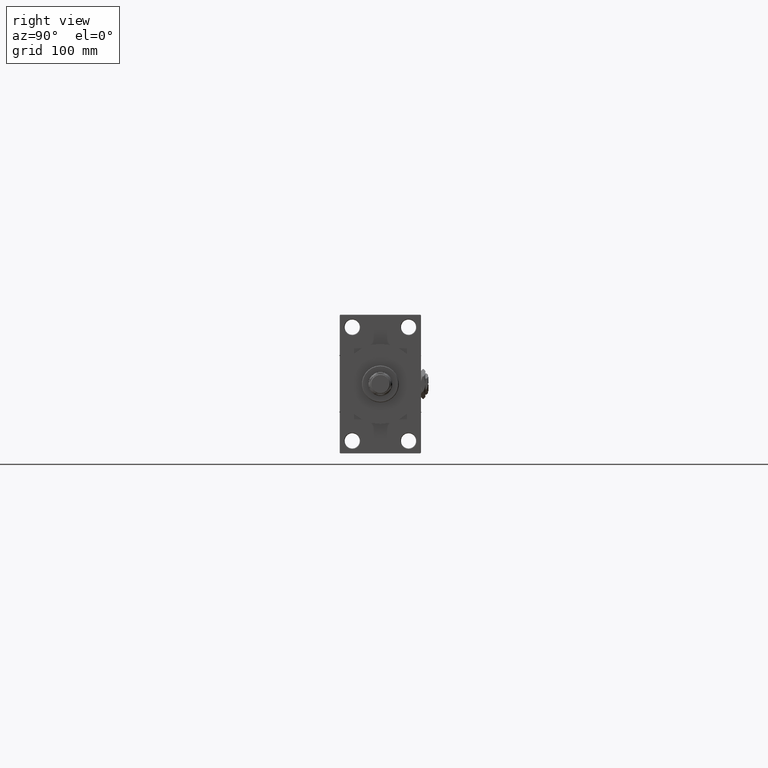
[diagram: clean part render]
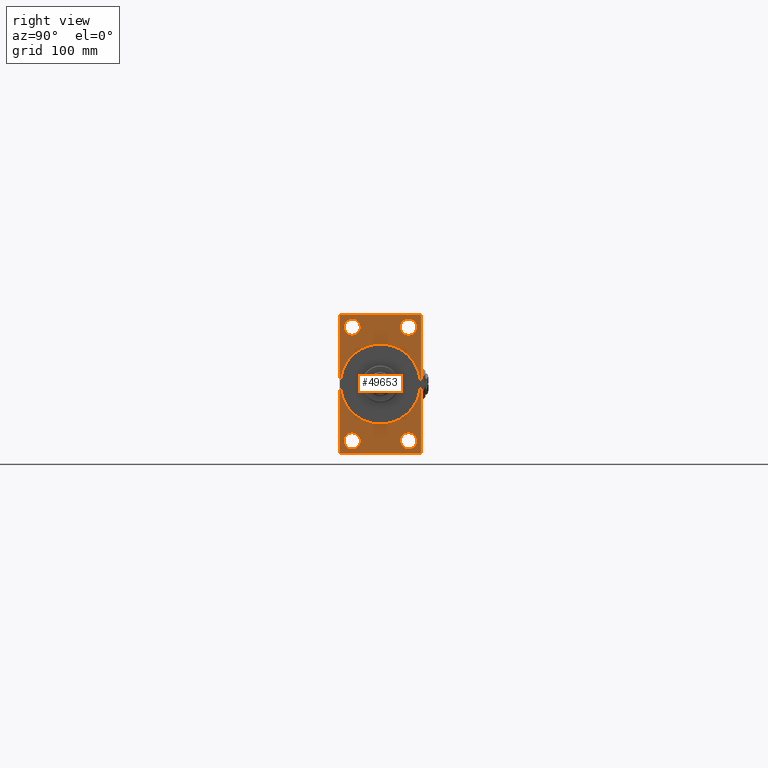
[diagram: same view with one face highlighted and labeled with its STEP entity id]
A machine part, right view. The second image highlights one B-rep face of the part: STEP entity #49653.
In plain terms, the highlighted planar face has unit normal (-1, 0, 0).
Its self-contained STEP definition (entity closure, byte-faithful):
#389 = LINE ( 'NONE', #12494, #36350 ) ;
#462 = AXIS2_PLACEMENT_3D ( 'NONE', #49452, #26256, #21903 ) ;
#643 = ORIENTED_EDGE ( 'NONE', *, *, #12085, .T. ) ;
#1282 = AXIS2_PLACEMENT_3D ( 'NONE', #48208, #48966, #21166 ) ;
#1859 = CARTESIAN_POINT ( 'NONE',  ( 568.0000000000001137, 26.00000000000000000, 44.99999999999998579 ) ) ;
#2209 = EDGE_CURVE ( 'NONE', #21845, #42909, #32504, .T. ) ;
#2258 = AXIS2_PLACEMENT_3D ( 'NONE', #23563, #19697, #27151 ) ;
#2338 = PLANE ( 'NONE',  #29239 ) ;
#2577 = FACE_BOUND ( 'NONE', #36704, .T. ) ;
#3233 = ORIENTED_EDGE ( 'NONE', *, *, #9011, .F. ) ;
#3449 = VERTEX_POINT ( 'NONE', #36911 ) ;
#3459 = CARTESIAN_POINT ( 'NONE',  ( 568.0000000000001137, -37.49999999999999289, 63.49999999999997158 ) ) ;
#3493 = DIRECTION ( 'NONE',  ( 0.000000000000000000, -1.000000000000000000, -1.850371707708594563E-16 ) ) ;
#3709 = CARTESIAN_POINT ( 'NONE',  ( 568.0000000000001137, -25.99999999999999645, -52.49999999999999289 ) ) ;
#3711 = CIRCLE ( 'NONE', #32464, 7.500000000000007105 ) ;
#3890 = EDGE_LOOP ( 'NONE', ( #29221, #23827 ) ) ;
#4214 = EDGE_CURVE ( 'NONE', #35051, #24487, #24438, .T. ) ;
#4538 = CIRCLE ( 'NONE', #11109, 7.500000000000007105 ) ;
#5804 = ORIENTED_EDGE ( 'NONE', *, *, #27560, .T. ) ;
#6195 = FACE_BOUND ( 'NONE', #43731, .T. ) ;
#6498 = CARTESIAN_POINT ( 'NONE',  ( 568.0000000000001137, 26.00000000000000000, -60.00000000000000000 ) ) ;
#6525 = DIRECTION ( 'NONE',  ( -0.000000000000000000, 0.7071067811865965336, 0.7071067811864985009 ) ) ;
#7617 = EDGE_CURVE ( 'NONE', #21946, #23939, #9576, .T. ) ;
#7666 = CARTESIAN_POINT ( 'NONE',  ( 568.0000000000001137, 4.531193156845206793E-15, -37.00000000000000000 ) ) ;
#8192 = LINE ( 'NONE', #27744, #23458 ) ;
#8268 = EDGE_CURVE ( 'NONE', #23939, #21946, #41583, .T. ) ;
#8319 = DIRECTION ( 'NONE',  ( 0.000000000000000000, 0.000000000000000000, 1.000000000000000000 ) ) ;
#8552 = EDGE_CURVE ( 'NONE', #11418, #29539, #21031, .T. ) ;
#8984 = VERTEX_POINT ( 'NONE', #7666 ) ;
#9011 = EDGE_CURVE ( 'NONE', #8984, #28791, #49827, .T. ) ;
#9106 = CARTESIAN_POINT ( 'NONE',  ( 568.0000000000001137, -25.99999999999999645, 52.50000000000000000 ) ) ;
#9576 = CIRCLE ( 'NONE', #22645, 7.500000000000007105 ) ;
#10064 = DIRECTION ( 'NONE',  ( 0.000000000000000000, 0.000000000000000000, 1.000000000000000000 ) ) ;
#10665 = VERTEX_POINT ( 'NONE', #20828 ) ;
#10708 = ORIENTED_EDGE ( 'NONE', *, *, #7617, .T. ) ;
#10730 = ORIENTED_EDGE ( 'NONE', *, *, #48144, .T. ) ;
#10847 = EDGE_LOOP ( 'NONE', ( #35472, #5804 ) ) ;
#10959 = ORIENTED_EDGE ( 'NONE', *, *, #8268, .T. ) ;
#10963 = CARTESIAN_POINT ( 'NONE',  ( 568.0000000000001137, 37.49999999999999289, -64.00000000000000000 ) ) ;
#11027 = VECTOR ( 'NONE', #6525, 1000.000000000000114 ) ;
#11109 = AXIS2_PLACEMENT_3D ( 'NONE', #3709, #11944, #26615 ) ;
#11418 = VERTEX_POINT ( 'NONE', #20462 ) ;
#11944 = DIRECTION ( 'NONE',  ( -1.000000000000000000, 0.000000000000000000, -0.000000000000000000 ) ) ;
#12085 = EDGE_CURVE ( 'NONE', #46202, #10665, #35342, .T. ) ;
#12350 = EDGE_LOOP ( 'NONE', ( #643, #47808, #31098, #46190, #50604, #16999, #37837, #10730 ) ) ;
#12494 = CARTESIAN_POINT ( 'NONE',  ( 568.0000000000001137, 37.00000000000000000, 63.99999999999998579 ) ) ;
#12950 = DIRECTION ( 'NONE',  ( -1.000000000000000000, 0.000000000000000000, -0.000000000000000000 ) ) ;
#14387 = VERTEX_POINT ( 'NONE', #17339 ) ;
#14406 = VECTOR ( 'NONE', #42064, 999.9999999999998863 ) ;
#15166 = VERTEX_POINT ( 'NONE', #41410 ) ;
#16052 = DIRECTION ( 'NONE',  ( -1.000000000000000000, 0.000000000000000000, -0.000000000000000000 ) ) ;
#16395 = CARTESIAN_POINT ( 'NONE',  ( 568.0000000000001137, 26.00000000000000000, 52.49999999999999289 ) ) ;
#16956 = DIRECTION ( 'NONE',  ( 0.000000000000000000, -1.000000000000000000, -1.850371707708594563E-16 ) ) ;
#16999 = ORIENTED_EDGE ( 'NONE', *, *, #43534, .T. ) ;
#17201 = EDGE_CURVE ( 'NONE', #3449, #42909, #8192, .T. ) ;
#17339 = CARTESIAN_POINT ( 'NONE',  ( 568.0000000000001137, -25.99999999999999645, 44.99999999999999289 ) ) ;
#18048 = CARTESIAN_POINT ( 'NONE',  ( 568.0000000000001137, 26.00000000000000000, 52.49999999999999289 ) ) ;
#19340 = VECTOR ( 'NONE', #16956, 1000.000000000000000 ) ;
#19697 = DIRECTION ( 'NONE',  ( -1.000000000000000000, 0.000000000000000000, -0.000000000000000000 ) ) ;
#20019 = CARTESIAN_POINT ( 'NONE',  ( 568.0000000000001137, 0.000000000000000000, 0.000000000000000000 ) ) ;
#20462 = CARTESIAN_POINT ( 'NONE',  ( 568.0000000000001137, 26.00000000000000000, -44.99999999999998579 ) ) ;
#20771 = DIRECTION ( 'NONE',  ( -1.000000000000000000, 0.000000000000000000, -0.000000000000000000 ) ) ;
#20828 = CARTESIAN_POINT ( 'NONE',  ( 568.0000000000001137, -37.49999999999999289, -63.50000000000002842 ) ) ;
#20847 = LINE ( 'NONE', #48423, #37671 ) ;
#20965 = CARTESIAN_POINT ( 'NONE',  ( 568.0000000000001137, 26.00000000000000000, 60.00000000000000000 ) ) ;
#21031 = CIRCLE ( 'NONE', #1282, 7.500000000000007105 ) ;
#21166 = DIRECTION ( 'NONE',  ( 0.000000000000000000, 0.000000000000000000, 1.000000000000000000 ) ) ;
#21845 = VERTEX_POINT ( 'NONE', #50634 ) ;
#21882 = CARTESIAN_POINT ( 'NONE',  ( 568.0000000000001137, -25.99999999999999645, 60.00000000000000711 ) ) ;
#21903 = DIRECTION ( 'NONE',  ( 0.000000000000000000, 0.000000000000000000, 1.000000000000000000 ) ) ;
#21946 = VERTEX_POINT ( 'NONE', #1859 ) ;
#21965 = AXIS2_PLACEMENT_3D ( 'NONE', #30919, #27836, #43558 ) ;
#22169 = CARTESIAN_POINT ( 'NONE',  ( 568.0000000000001137, 0.000000000000000000, 37.00000000000000000 ) ) ;
#22645 = AXIS2_PLACEMENT_3D ( 'NONE', #18048, #46345, #10064 ) ;
#22654 = FACE_BOUND ( 'NONE', #3890, .T. ) ;
#22768 = CIRCLE ( 'NONE', #21965, 37.00000000000000000 ) ;
#23458 = VECTOR ( 'NONE', #47582, 1000.000000000000000 ) ;
#23563 = CARTESIAN_POINT ( 'NONE',  ( 568.0000000000001137, -25.99999999999999645, -52.49999999999999289 ) ) ;
#23827 = ORIENTED_EDGE ( 'NONE', *, *, #8552, .T. ) ;
#23939 = VERTEX_POINT ( 'NONE', #20965 ) ;
#24438 = LINE ( 'NONE', #40909, #19340 ) ;
#24487 = VERTEX_POINT ( 'NONE', #30887 ) ;
#24759 = CARTESIAN_POINT ( 'NONE',  ( 568.0000000000001137, -36.99999999999999289, -64.00000000000001421 ) ) ;
#24833 = ORIENTED_EDGE ( 'NONE', *, *, #27363, .T. ) ;
#26256 = DIRECTION ( 'NONE',  ( -1.000000000000000000, 0.000000000000000000, -0.000000000000000000 ) ) ;
#26489 = DIRECTION ( 'NONE',  ( -0.000000000000000000, 0.000000000000000000, 1.000000000000000000 ) ) ;
#26615 = DIRECTION ( 'NONE',  ( 0.000000000000000000, 0.000000000000000000, 1.000000000000000000 ) ) ;
#26900 = CIRCLE ( 'NONE', #2258, 7.500000000000007105 ) ;
#27151 = DIRECTION ( 'NONE',  ( 0.000000000000000000, 0.000000000000000000, 1.000000000000000000 ) ) ;
#27363 = EDGE_CURVE ( 'NONE', #30094, #15166, #4538, .T. ) ;
#27560 = EDGE_CURVE ( 'NONE', #29788, #14387, #3711, .T. ) ;
#27744 = CARTESIAN_POINT ( 'NONE',  ( 568.0000000000001137, 37.50000000000000000, 63.99999999999998579 ) ) ;
#27836 = DIRECTION ( 'NONE',  ( 1.000000000000000000, 0.000000000000000000, 0.000000000000000000 ) ) ;
#28791 = VERTEX_POINT ( 'NONE', #22169 ) ;
#29221 = ORIENTED_EDGE ( 'NONE', *, *, #49639, .T. ) ;
#29239 = AXIS2_PLACEMENT_3D ( 'NONE', #30363, #37594, #26489 ) ;
#29539 = VERTEX_POINT ( 'NONE', #6498 ) ;
#29788 = VERTEX_POINT ( 'NONE', #21882 ) ;
#29843 = FACE_BOUND ( 'NONE', #10847, .T. ) ;
#30094 = VERTEX_POINT ( 'NONE', #50322 ) ;
#30363 = CARTESIAN_POINT ( 'NONE',  ( 568.0000000000001137, 0.000000000000000000, 0.000000000000000000 ) ) ;
#30441 = CIRCLE ( 'NONE', #49376, 7.500000000000007105 ) ;
#30887 = CARTESIAN_POINT ( 'NONE',  ( 568.0000000000001137, -36.99999999999998579, 63.99999999999997158 ) ) ;
#30919 = CARTESIAN_POINT ( 'NONE',  ( 568.0000000000001137, 0.000000000000000000, 0.000000000000000000 ) ) ;
#31098 = ORIENTED_EDGE ( 'NONE', *, *, #43497, .F. ) ;
#31326 = EDGE_CURVE ( 'NONE', #28791, #8984, #22768, .T. ) ;
#31902 = EDGE_CURVE ( 'NONE', #15166, #30094, #26900, .T. ) ;
#32347 = CARTESIAN_POINT ( 'NONE',  ( 568.0000000000001137, 37.00000000000000000, 63.99999999999998579 ) ) ;
#32456 = AXIS2_PLACEMENT_3D ( 'NONE', #16395, #20771, #36976 ) ;
#32464 = AXIS2_PLACEMENT_3D ( 'NONE', #9106, #16052, #36131 ) ;
#32504 = LINE ( 'NONE', #41798, #11027 ) ;
#33201 = ORIENTED_EDGE ( 'NONE', *, *, #31326, .F. ) ;
#33962 = FACE_BOUND ( 'NONE', #44880, .T. ) ;
#34227 = FACE_OUTER_BOUND ( 'NONE', #12350, .T. ) ;
#34821 = CARTESIAN_POINT ( 'NONE',  ( 568.0000000000001137, -37.49999999999999289, 63.99999999999997158 ) ) ;
#35051 = VERTEX_POINT ( 'NONE', #32347 ) ;
#35342 = LINE ( 'NONE', #34821, #46654 ) ;
#35472 = ORIENTED_EDGE ( 'NONE', *, *, #41926, .T. ) ;
#35660 = DIRECTION ( 'NONE',  ( 0.000000000000000000, -0.7071067811865474617, 0.7071067811865474617 ) ) ;
#36131 = DIRECTION ( 'NONE',  ( 0.000000000000000000, 0.000000000000000000, 1.000000000000000000 ) ) ;
#36350 = VECTOR ( 'NONE', #35660, 1000.000000000000114 ) ;
#36704 = EDGE_LOOP ( 'NONE', ( #24833, #49043 ) ) ;
#36911 = CARTESIAN_POINT ( 'NONE',  ( 568.0000000000001137, 37.50000000000000000, 63.49999999999998579 ) ) ;
#36976 = DIRECTION ( 'NONE',  ( 0.000000000000000000, 0.000000000000000000, 1.000000000000000000 ) ) ;
#37594 = DIRECTION ( 'NONE',  ( -1.000000000000000000, 0.000000000000000000, -0.000000000000000000 ) ) ;
#37671 = VECTOR ( 'NONE', #44549, 1000.000000000000000 ) ;
#37826 = EDGE_CURVE ( 'NONE', #10665, #39871, #20847, .T. ) ;
#37837 = ORIENTED_EDGE ( 'NONE', *, *, #4214, .T. ) ;
#37924 = LINE ( 'NONE', #38176, #14406 ) ;
#38176 = CARTESIAN_POINT ( 'NONE',  ( 568.0000000000001137, -37.49999999999999289, 63.49999999999997158 ) ) ;
#39871 = VERTEX_POINT ( 'NONE', #24759 ) ;
#40909 = CARTESIAN_POINT ( 'NONE',  ( 568.0000000000001137, 37.50000000000000000, 63.99999999999998579 ) ) ;
#41410 = CARTESIAN_POINT ( 'NONE',  ( 568.0000000000001137, -25.99999999999999645, -44.99999999999998579 ) ) ;
#41583 = CIRCLE ( 'NONE', #32456, 7.500000000000007105 ) ;
#41798 = CARTESIAN_POINT ( 'NONE',  ( 568.0000000000001137, 37.49999999999999289, -63.50000000000012790 ) ) ;
#41926 = EDGE_CURVE ( 'NONE', #14387, #29788, #30441, .T. ) ;
#42064 = DIRECTION ( 'NONE',  ( -0.000000000000000000, -0.7071067811865525687, -0.7071067811865425767 ) ) ;
#42648 = LINE ( 'NONE', #10963, #49530 ) ;
#42826 = DIRECTION ( 'NONE',  ( 0.000000000000000000, 0.000000000000000000, -1.000000000000000000 ) ) ;
#42909 = VERTEX_POINT ( 'NONE', #50829 ) ;
#43465 = DIRECTION ( 'NONE',  ( 1.000000000000000000, 0.000000000000000000, 0.000000000000000000 ) ) ;
#43497 = EDGE_CURVE ( 'NONE', #21845, #39871, #42648, .T. ) ;
#43534 = EDGE_CURVE ( 'NONE', #3449, #35051, #389, .T. ) ;
#43558 = DIRECTION ( 'NONE',  ( 0.000000000000000000, 0.000000000000000000, -1.000000000000000000 ) ) ;
#43731 = EDGE_LOOP ( 'NONE', ( #33201, #3233 ) ) ;
#44549 = DIRECTION ( 'NONE',  ( 0.000000000000000000, 0.7071067811865573427, -0.7071067811865378028 ) ) ;
#44880 = EDGE_LOOP ( 'NONE', ( #10708, #10959 ) ) ;
#44892 = CIRCLE ( 'NONE', #462, 7.500000000000007105 ) ;
#46190 = ORIENTED_EDGE ( 'NONE', *, *, #2209, .T. ) ;
#46202 = VERTEX_POINT ( 'NONE', #3459 ) ;
#46345 = DIRECTION ( 'NONE',  ( -1.000000000000000000, 0.000000000000000000, -0.000000000000000000 ) ) ;
#46654 = VECTOR ( 'NONE', #42826, 1000.000000000000000 ) ;
#47454 = CARTESIAN_POINT ( 'NONE',  ( 568.0000000000001137, -25.99999999999999645, 52.50000000000000000 ) ) ;
#47582 = DIRECTION ( 'NONE',  ( 0.000000000000000000, -5.421010862427522170E-17, -1.000000000000000000 ) ) ;
#47808 = ORIENTED_EDGE ( 'NONE', *, *, #37826, .T. ) ;
#48144 = EDGE_CURVE ( 'NONE', #24487, #46202, #37924, .T. ) ;
#48208 = CARTESIAN_POINT ( 'NONE',  ( 568.0000000000001137, 26.00000000000000000, -52.49999999999999289 ) ) ;
#48423 = CARTESIAN_POINT ( 'NONE',  ( 568.0000000000001137, -36.99999999999999289, -64.00000000000001421 ) ) ;
#48966 = DIRECTION ( 'NONE',  ( -1.000000000000000000, 0.000000000000000000, -0.000000000000000000 ) ) ;
#49009 = AXIS2_PLACEMENT_3D ( 'NONE', #20019, #43465, #50950 ) ;
#49043 = ORIENTED_EDGE ( 'NONE', *, *, #31902, .T. ) ;
#49376 = AXIS2_PLACEMENT_3D ( 'NONE', #47454, #12950, #8319 ) ;
#49452 = CARTESIAN_POINT ( 'NONE',  ( 568.0000000000001137, 26.00000000000000000, -52.49999999999999289 ) ) ;
#49530 = VECTOR ( 'NONE', #3493, 1000.000000000000000 ) ;
#49639 = EDGE_CURVE ( 'NONE', #29539, #11418, #44892, .T. ) ;
#49653 = ADVANCED_FACE ( 'NONE', ( #29843, #2577, #22654, #33962, #6195, #34227 ), #2338, .F. ) ;
#49827 = CIRCLE ( 'NONE', #49009, 37.00000000000000000 ) ;
#50322 = CARTESIAN_POINT ( 'NONE',  ( 568.0000000000001137, -25.99999999999999645, -60.00000000000000000 ) ) ;
#50604 = ORIENTED_EDGE ( 'NONE', *, *, #17201, .F. ) ;
#50634 = CARTESIAN_POINT ( 'NONE',  ( 568.0000000000001137, 37.00000000000004974, -64.00000000000000000 ) ) ;
#50829 = CARTESIAN_POINT ( 'NONE',  ( 568.0000000000001137, 37.49999999999999289, -63.50000000000012790 ) ) ;
#50950 = DIRECTION ( 'NONE',  ( 0.000000000000000000, 0.000000000000000000, -1.000000000000000000 ) ) ;